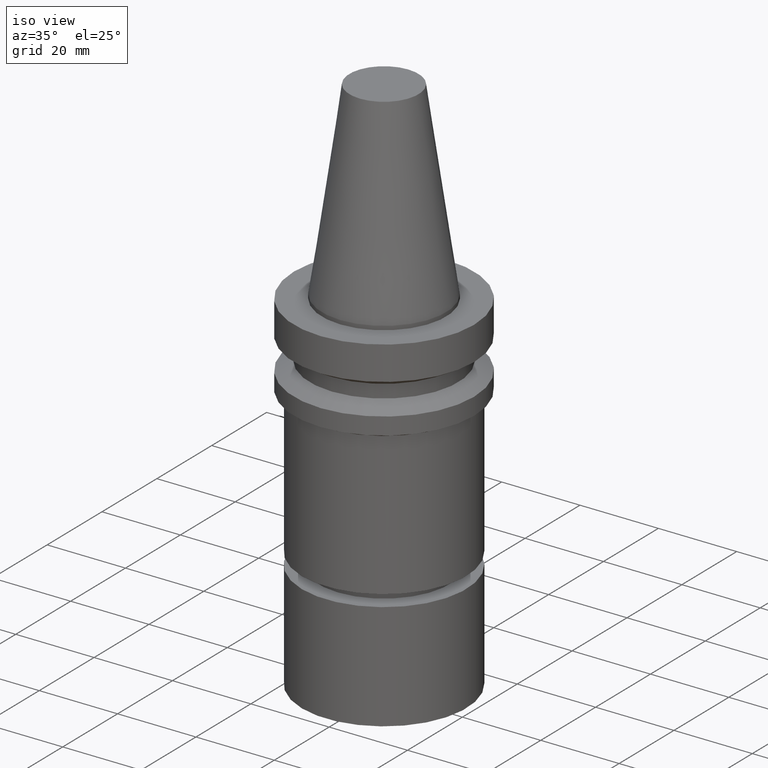
[diagram: clean part render]
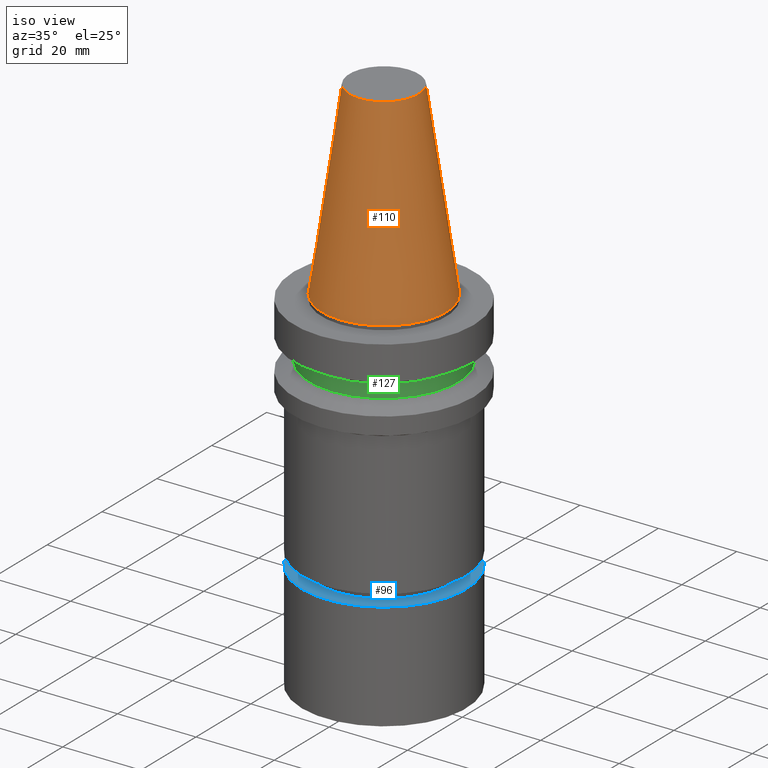
[diagram: same view with three faces highlighted in distinct colors, each labeled with its STEP entity id]
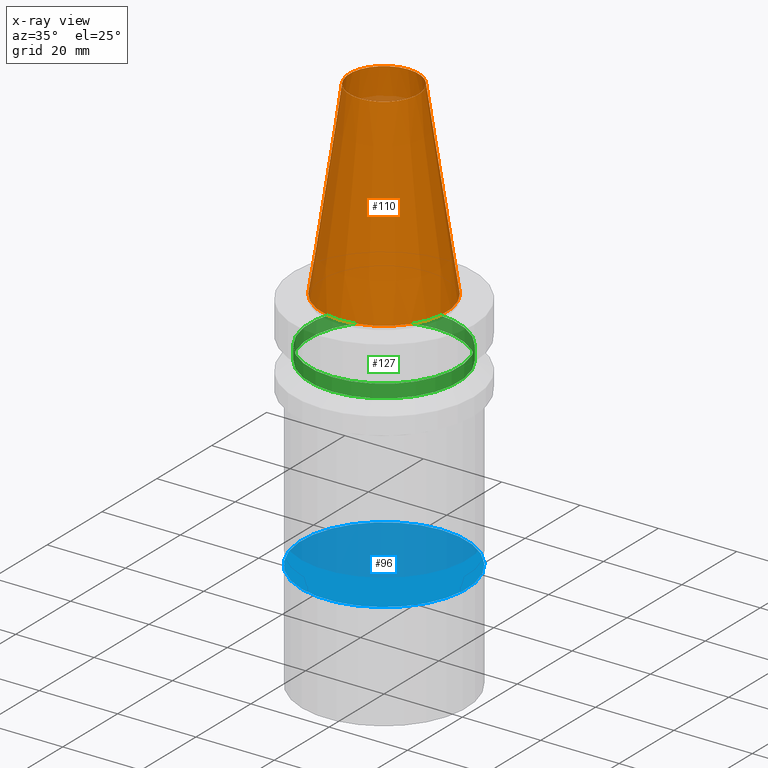
[diagram: x-ray of the same camera — body ghosted, the three highlighted faces saturated]
A machine part, iso view with three faces highlighted in distinct colors.
The next image is the same camera in x-ray (body ghosted, the three faces saturated) — at least one of them is partly hidden behind the body in this view.
Their STEP definitions:

[orange] entity #110 — the highlighted conical surface has half-angle 8.297 deg.
#101=EDGE_CURVE('Unnamed[1]',#242,#242,#243,.T.);
#110=ADVANCED_FACE('Unnamed[1]',(#255,#256),#257,.T.);
#148=EDGE_CURVE('Unnamed[1]',#311,#311,#312,.T.);
#242=VERTEX_POINT('',#428);
#243=CIRCLE('',#429,15.875);
#255=FACE_BOUND('',#444,.T.);
#256=FACE_BOUND('',#445,.T.);
#257=CONICAL_SURFACE('',#446,12.3457500009933,0.144815870013618);
#311=VERTEX_POINT('',#513);
#312=CIRCLE('',#514,8.81650000198669);
#428=CARTESIAN_POINT('',(-1.95674482349743E-031,15.875,1.94412679364642E-015));
#429=AXIS2_PLACEMENT_3D('',#627,#628,#629);
#444=EDGE_LOOP('',(#642));
#445=EDGE_LOOP('',(#643));
#446=AXIS2_PLACEMENT_3D('',#644,#645,#646);
#513=CARTESIAN_POINT('',(-2.96364525393659E-015,8.81650000198669,48.4));
#514=AXIS2_PLACEMENT_3D('',#701,#702,#703);
#627=CARTESIAN_POINT('',(0.0,0.0,0.0));
#628=DIRECTION('',(6.12323399573677E-017,1.22464679914714E-016,-1.0));
#629=DIRECTION('',(-1.23259516440783E-032,1.0,1.22464679914714E-016));
#642=ORIENTED_EDGE('',*,*,#101,.F.);
#643=ORIENTED_EDGE('',*,*,#148,.T.);
#644=CARTESIAN_POINT('',(-1.4818226269683E-015,-2.96364525393659E-015,24.2));
#645=DIRECTION('',(6.12323399573677E-017,1.22464679914699E-016,-1.0));
#646=DIRECTION('',(-1.23259516440749E-032,1.0,1.22464679914699E-016));
#701=CARTESIAN_POINT('',(-2.96364525393659E-015,-5.92729050787319E-015,48.4));
#702=DIRECTION('',(6.12323399573677E-017,1.22464679914764E-016,-1.0));
#703=DIRECTION('',(-1.23259516440789E-032,1.0,1.22464679914764E-016));

[blue] entity #96 — the highlighted planar face has unit normal (-0, -0, 1).
#96=ADVANCED_FACE('Unnamed[1]',(#234),#235,.T.);
#119=EDGE_CURVE('Unnamed[1]',#268,#268,#269,.T.);
#234=FACE_OUTER_BOUND('',#418,.T.);
#235=PLANE('',#419);
#268=VERTEX_POINT('',#460);
#269=CIRCLE('',#461,21.0);
#418=EDGE_LOOP('',(#617));
#419=AXIS2_PLACEMENT_3D('',#618,#619,#620);
#460=CARTESIAN_POINT('',(3.82702124733548E-015,21.0,-62.5));
#461=AXIS2_PLACEMENT_3D('',#654,#655,#656);
#617=ORIENTED_EDGE('',*,*,#119,.F.);
#618=CARTESIAN_POINT('',(3.82702124733548E-015,10.5,-62.5));
#619=DIRECTION('',(-6.12323399573677E-017,-1.22464679914735E-016,1.0));
#620=DIRECTION('',(1.23259516440783E-032,-1.0,-1.22464679914735E-016));
#654=CARTESIAN_POINT('',(3.82702124733548E-015,7.65404249467096E-015,-62.5));
#655=DIRECTION('',(6.12323399573677E-017,1.22464679914735E-016,-1.0));
#656=DIRECTION('',(-1.23259516440783E-032,1.0,1.22464679914735E-016));

[green] entity #127 — the highlighted cylindrical surface (bore or boss wall) has radius 19 mm, axis along (0, 0, -1).
#127=ADVANCED_FACE('Unnamed[1]',(#280,#281),#282,.T.);
#143=EDGE_CURVE('Unnamed[1]',#303,#303,#304,.T.);
#157=EDGE_CURVE('Unnamed[1]',#325,#325,#326,.T.);
#280=FACE_BOUND('',#475,.T.);
#281=FACE_BOUND('',#476,.T.);
#282=CYLINDRICAL_SURFACE('',#477,19.0);
#303=VERTEX_POINT('',#503);
#304=CIRCLE('',#504,19.0);
#325=VERTEX_POINT('',#531);
#326=CIRCLE('',#532,19.0);
#475=EDGE_LOOP('',(#667));
#476=EDGE_LOOP('',(#668));
#477=AXIS2_PLACEMENT_3D('',#669,#670,#671);
#503=CARTESIAN_POINT('',(9.36279151221199E-016,19.0,-15.29059892));
#504=AXIS2_PLACEMENT_3D('',#692,#693,#694);
#531=CARTESIAN_POINT('',(7.29240495619202E-016,19.0,-11.90940108));
#532=AXIS2_PLACEMENT_3D('',#716,#717,#718);
#667=ORIENTED_EDGE('',*,*,#143,.F.);
#668=ORIENTED_EDGE('',*,*,#157,.T.);
#669=CARTESIAN_POINT('',(8.32759823420201E-016,1.6655196468404E-015,-13.6));
#670=DIRECTION('',(6.12323399573677E-017,1.22464679914665E-016,-1.0));
#671=DIRECTION('',(-1.23259516440783E-032,1.0,1.22464679914665E-016));
#692=CARTESIAN_POINT('',(9.36279151221199E-016,1.8725583024424E-015,-15.29059892));
#693=DIRECTION('',(6.12323399573677E-017,1.22464679914665E-016,-1.0));
#694=DIRECTION('',(-1.23259516440783E-032,1.0,1.22464679914665E-016));
#716=CARTESIAN_POINT('',(7.29240495619202E-016,1.4584809912384E-015,-11.90940108));
#717=DIRECTION('',(6.12323399573677E-017,1.22464679914665E-016,-1.0));
#718=DIRECTION('',(-1.23259516440783E-032,1.0,1.22464679914665E-016));